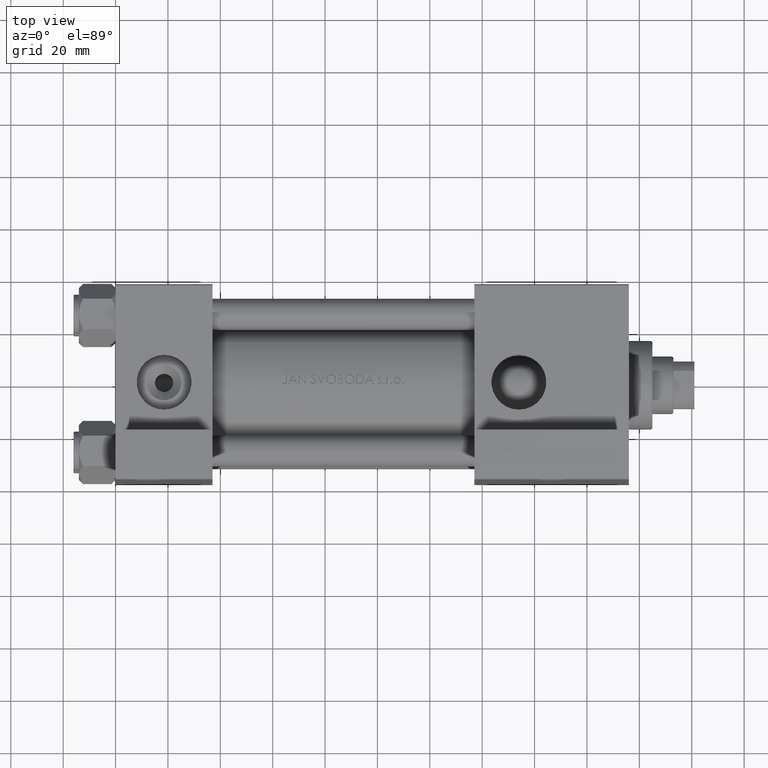
[diagram: clean part render]
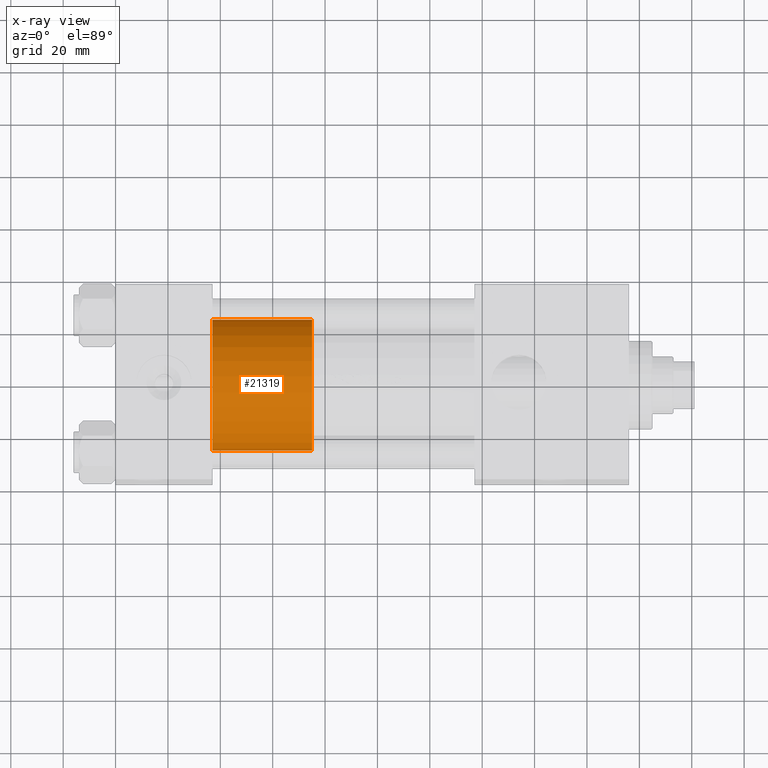
[diagram: x-ray — body ghosted, one internal face saturated and labeled with its STEP entity id]
A machine part, top view, then the same camera in x-ray: the body is ghosted and one INTERNAL B-rep face — a face not visible from any outside direction — is saturated and labeled: STEP entity #21319.
In plain terms, the highlighted cylindrical surface (partial cylindrical patch) has radius 25 mm, axis along (-1, 0, 0).
Its self-contained STEP definition (entity closure, byte-faithful):
#1617 = EDGE_LOOP ( 'NONE', ( #17221, #13976, #28350, #14540 ) ) ;
#5891 = EDGE_CURVE ( 'NONE', #45204, #48317, #20382, .T. ) ;
#6767 = DIRECTION ( 'NONE',  ( -0.000000000000000000, -0.000000000000000000, -1.000000000000000000 ) ) ;
#10694 = EDGE_CURVE ( 'NONE', #24328, #48317, #32551, .T. ) ;
#13976 = ORIENTED_EDGE ( 'NONE', *, *, #14952, .F. ) ;
#14341 = EDGE_CURVE ( 'NONE', #19782, #45204, #48595, .T. ) ;
#14540 = ORIENTED_EDGE ( 'NONE', *, *, #5891, .T. ) ;
#14952 = EDGE_CURVE ( 'NONE', #19782, #24328, #26404, .T. ) ;
#15011 = DIRECTION ( 'NONE',  ( -1.000000000000000000, 0.000000000000000000, 0.000000000000000000 ) ) ;
#15954 = CARTESIAN_POINT ( 'NONE',  ( -25.00000000000000000, 0.000000000000000000, 0.000000000000000000 ) ) ;
#17221 = ORIENTED_EDGE ( 'NONE', *, *, #10694, .F. ) ;
#18013 = CARTESIAN_POINT ( 'NONE',  ( 0.000000000000000000, 0.000000000000000000, 38.00000000000000000 ) ) ;
#19468 = CARTESIAN_POINT ( 'NONE',  ( 0.000000000000000000, 0.000000000000000000, 38.00000000000000000 ) ) ;
#19777 = AXIS2_PLACEMENT_3D ( 'NONE', #19468, #22728, #15011 ) ;
#19782 = VERTEX_POINT ( 'NONE', #39995 ) ;
#20382 = CIRCLE ( 'NONE', #38690, 25.00000000000000000 ) ;
#21319 = ADVANCED_FACE ( 'NONE', ( #45884 ), #26240, .T. ) ;
#21522 = DIRECTION ( 'NONE',  ( 0.000000000000000000, 0.000000000000000000, 1.000000000000000000 ) ) ;
#22198 = CARTESIAN_POINT ( 'NONE',  ( -25.00000000000000000, 0.000000000000000000, 38.00000000000000000 ) ) ;
#22728 = DIRECTION ( 'NONE',  ( -0.000000000000000000, -0.000000000000000000, -1.000000000000000000 ) ) ;
#23369 = DIRECTION ( 'NONE',  ( 0.000000000000000000, 0.000000000000000000, 1.000000000000000000 ) ) ;
#24328 = VERTEX_POINT ( 'NONE', #42849 ) ;
#26240 = CYLINDRICAL_SURFACE ( 'NONE', #19777, 25.00000000000000000 ) ;
#26404 = CIRCLE ( 'NONE', #46244, 25.00000000000000000 ) ;
#28350 = ORIENTED_EDGE ( 'NONE', *, *, #14341, .T. ) ;
#29265 = DIRECTION ( 'NONE',  ( 1.000000000000000000, 0.000000000000000000, 0.000000000000000000 ) ) ;
#31234 = CARTESIAN_POINT ( 'NONE',  ( 25.00000000000000000, 3.061616997868383043E-15, 0.000000000000000000 ) ) ;
#32047 = CARTESIAN_POINT ( 'NONE',  ( 25.00000000000000000, 3.061616997868383043E-15, 38.00000000000000000 ) ) ;
#32551 = LINE ( 'NONE', #32047, #33198 ) ;
#33198 = VECTOR ( 'NONE', #35531, 1000.000000000000000 ) ;
#33671 = DIRECTION ( 'NONE',  ( 1.000000000000000000, 0.000000000000000000, 0.000000000000000000 ) ) ;
#35531 = DIRECTION ( 'NONE',  ( -0.000000000000000000, -0.000000000000000000, -1.000000000000000000 ) ) ;
#38690 = AXIS2_PLACEMENT_3D ( 'NONE', #42293, #23369, #33671 ) ;
#39995 = CARTESIAN_POINT ( 'NONE',  ( -25.00000000000000000, 0.000000000000000000, 38.00000000000000000 ) ) ;
#41355 = VECTOR ( 'NONE', #6767, 1000.000000000000000 ) ;
#42293 = CARTESIAN_POINT ( 'NONE',  ( 0.000000000000000000, 0.000000000000000000, 0.000000000000000000 ) ) ;
#42849 = CARTESIAN_POINT ( 'NONE',  ( 25.00000000000000000, 3.061616997868383043E-15, 38.00000000000000000 ) ) ;
#45204 = VERTEX_POINT ( 'NONE', #15954 ) ;
#45884 = FACE_OUTER_BOUND ( 'NONE', #1617, .T. ) ;
#46244 = AXIS2_PLACEMENT_3D ( 'NONE', #18013, #21522, #29265 ) ;
#48317 = VERTEX_POINT ( 'NONE', #31234 ) ;
#48595 = LINE ( 'NONE', #22198, #41355 ) ;